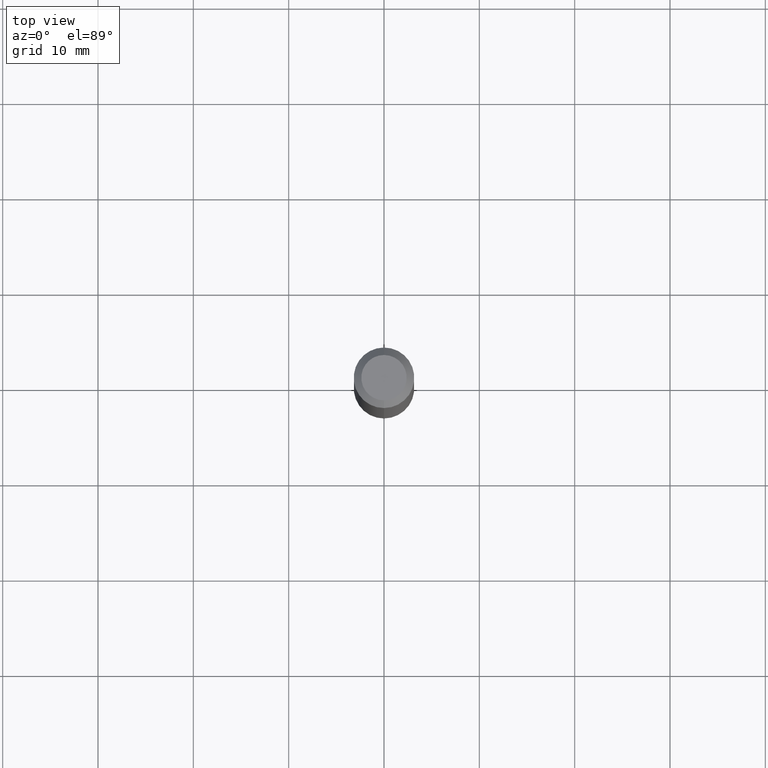
[diagram: clean part render]
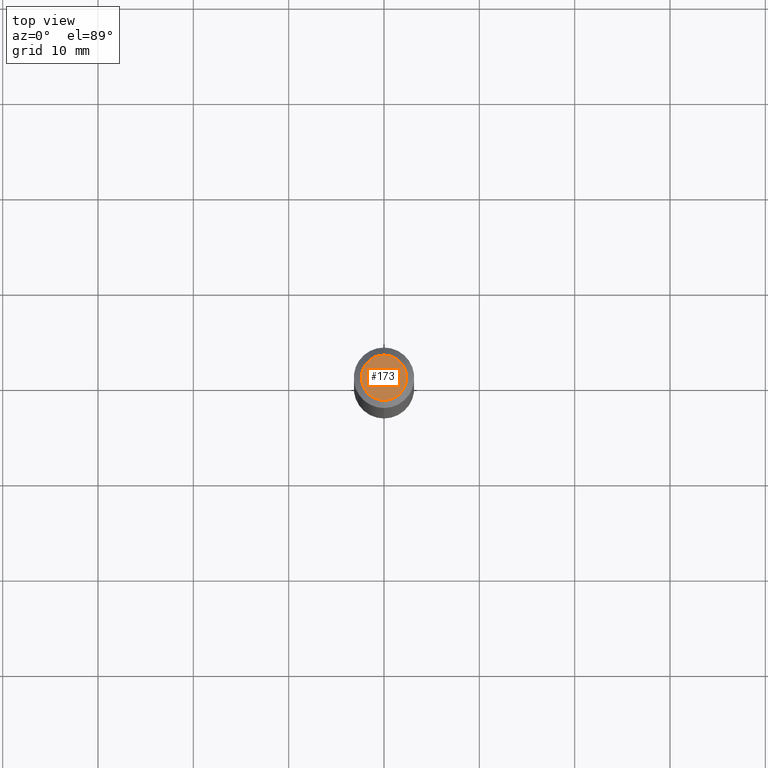
[diagram: same view with one face highlighted and labeled with its STEP entity id]
A machine part, top view. The second image highlights one B-rep face of the part: STEP entity #173.
In plain terms, the highlighted planar face has unit normal (0, -0, -1).
Its self-contained STEP definition (entity closure, byte-faithful):
#25 = CARTESIAN_POINT ( 'NONE',  ( -3.397982428467408395E-30, -4.866104238714468673E-16, 1.310162147875615221E-17 ) ) ;
#34 = CIRCLE ( 'NONE', #204, 0.09375000000000049960 ) ;
#46 = FACE_OUTER_BOUND ( 'NONE', #372, .T. ) ;
#51 = CARTESIAN_POINT ( 'NONE',  ( -7.503669685062676741E-16, -0.09375000000000098532, 3.151130060631535691E-16 ) ) ;
#82 = CARTESIAN_POINT ( 'NONE',  ( 6.546527510330876027E-16, 0.09375000000000002776, -2.858986465786003734E-16 ) ) ;
#112 = VERTEX_POINT ( 'NONE', #115 ) ;
#115 = CARTESIAN_POINT ( 'NONE',  ( 7.637615428719357173E-16, 0.09375000000000002776, -2.889097631056411938E-16 ) ) ;
#123 = EDGE_CURVE ( 'NONE', #390, #112, #233, .T. ) ;
#173 = ADVANCED_FACE ( 'NONE', ( #46 ), #265, .F. ) ;
#204 = AXIS2_PLACEMENT_3D ( 'NONE', #25, #408, #382 ) ;
#217 = ORIENTED_EDGE ( 'NONE', *, *, #123, .T. ) ;
#233 = CIRCLE ( 'NONE', #413, 0.09375000000000049960 ) ;
#239 = EDGE_CURVE ( 'NONE', #112, #390, #34, .T. ) ;
#265 = PLANE ( 'NONE',  #266 ) ;
#266 = AXIS2_PLACEMENT_3D ( 'NONE', #82, #373, #338 ) ;
#295 = CARTESIAN_POINT ( 'NONE',  ( -3.397982428467408395E-30, -4.866104238714468673E-16, 1.310162147875615221E-17 ) ) ;
#298 = DIRECTION ( 'NONE',  ( -6.982962677686265922E-15, -1.000000000000000000, 3.221454768900221643E-15 ) ) ;
#338 = DIRECTION ( 'NONE',  ( 6.982962677686265922E-15, 1.000000000000000000, -3.221454768900221643E-15 ) ) ;
#340 = ORIENTED_EDGE ( 'NONE', *, *, #239, .T. ) ;
#372 = EDGE_LOOP ( 'NONE', ( #340, #217 ) ) ;
#373 = DIRECTION ( 'NONE',  ( 2.634027352174644094E-29, -3.221454768900221643E-15, -1.000000000000000000 ) ) ;
#382 = DIRECTION ( 'NONE',  ( -6.982962677686265922E-15, -1.000000000000000000, 3.221454768900221643E-15 ) ) ;
#390 = VERTEX_POINT ( 'NONE', #51 ) ;
#397 = DIRECTION ( 'NONE',  ( -2.634027352174644094E-29, 3.221454768900221643E-15, 1.000000000000000000 ) ) ;
#408 = DIRECTION ( 'NONE',  ( -2.634027352174644094E-29, 3.221454768900221643E-15, 1.000000000000000000 ) ) ;
#413 = AXIS2_PLACEMENT_3D ( 'NONE', #295, #397, #298 ) ;